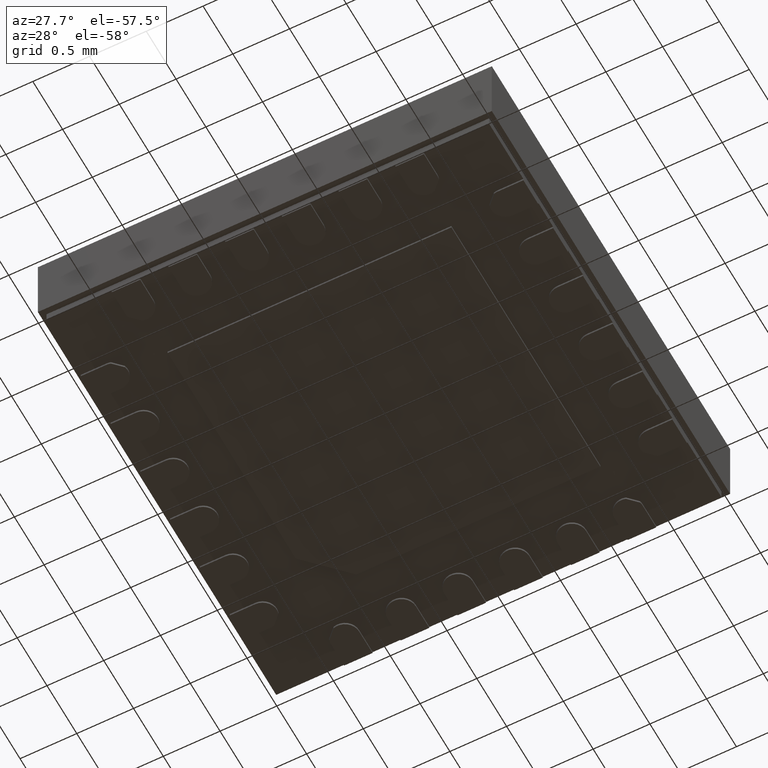
[diagram: clean part render]
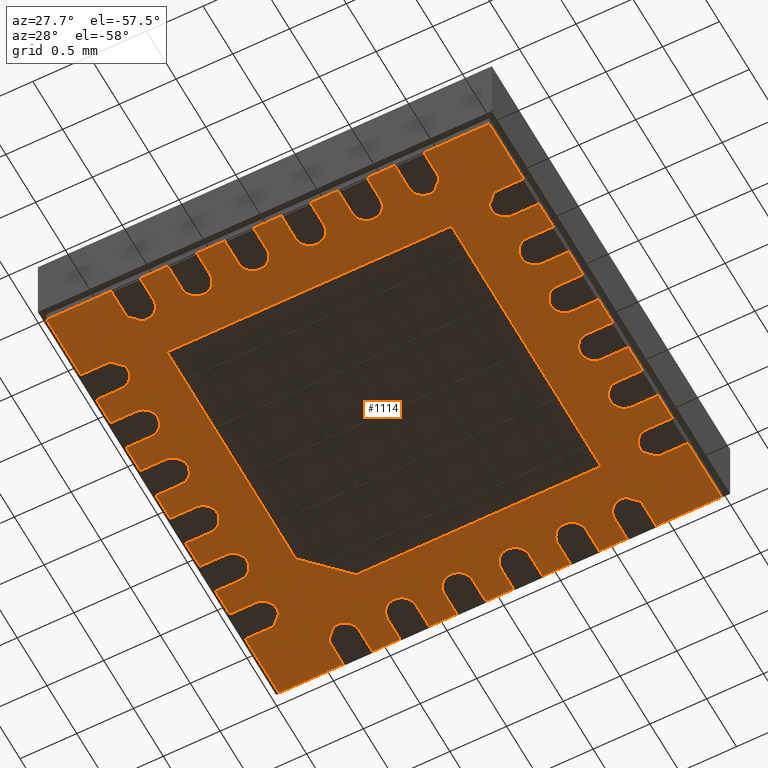
[diagram: same view with one face highlighted and labeled with its STEP entity id]
A machine part, auxiliary view. The second image highlights one B-rep face of the part: STEP entity #1114.
In plain terms, the highlighted planar face has unit normal (0, 0, 1).
Its self-contained STEP definition (entity closure, byte-faithful):
#1114=ADVANCED_FACE('',(#2281,#2282),#2283,.F.);
#2281=FACE_BOUND('',#3574,.T.);
#2282=FACE_OUTER_BOUND('',#3575,.T.);
#2283=PLANE('',#3576);
#3574=EDGE_LOOP('',(#6395,#6396,#6397,#6398,#6399));
#3575=EDGE_LOOP('',(#6400,#6401,#6402,#6403,#6404,#6405,#6406,#6407,#6408,#6409,#6410,#6411,#6412,#6413,#6414,#6415,#6416,#6417,#6418,#6419,#6420,#6421,#6422,#6423,#6424,#6425,#6426,#6427,#6428,#6429,#6430,#6431,#6432,#6433,#6434,#6435,#6436,#6437,#6438,#6439,#6440,#6441,#6442,#6443,#6444,#6445,#6446,#6447,#6448,#6449,#6450,#6451,#6452,#6453,#6454,#6455,#6456,#6457,#6458,#6459,#6460,#6461,#6462,#6463,#6464,#6465,#6466,#6467,#6468,#6469,#6470,#6471,#6472,#6473,#6474,#6475,#6476,#6477,#6478,#6479,#6480,#6481,#6482,#6483,#6484,#6485,#6486,#6487,#6488,#6489,#6490,#6491,#6492,#6493,#6494,#6495,#6496,#6497,#6498,#6499,#6500,#6501,#6502,#6503,#6504,#6505,#6506,#6507,#6508,#6509,#6510,#6511,#6512,#6513,#6514,#6515));
#3576=AXIS2_PLACEMENT_3D('',#6516,#6517,#6518);
#6395=ORIENTED_EDGE('',*,*,#8617,.T.);
#6396=ORIENTED_EDGE('',*,*,#8618,.T.);
#6397=ORIENTED_EDGE('',*,*,#8619,.T.);
#6398=ORIENTED_EDGE('',*,*,#8620,.T.);
#6399=ORIENTED_EDGE('',*,*,#8621,.T.);
#6400=ORIENTED_EDGE('',*,*,#8299,.T.);
#6401=ORIENTED_EDGE('',*,*,#8505,.T.);
#6402=ORIENTED_EDGE('',*,*,#8622,.T.);
#6403=ORIENTED_EDGE('',*,*,#8623,.T.);
#6404=ORIENTED_EDGE('',*,*,#8269,.T.);
#6405=ORIENTED_EDGE('',*,*,#8510,.T.);
#6406=ORIENTED_EDGE('',*,*,#8624,.T.);
#6407=ORIENTED_EDGE('',*,*,#8625,.T.);
#6408=ORIENTED_EDGE('',*,*,#8274,.T.);
#6409=ORIENTED_EDGE('',*,*,#8515,.T.);
#6410=ORIENTED_EDGE('',*,*,#8626,.T.);
#6411=ORIENTED_EDGE('',*,*,#8627,.T.);
#6412=ORIENTED_EDGE('',*,*,#8628,.T.);
#6413=ORIENTED_EDGE('',*,*,#8629,.T.);
#6414=ORIENTED_EDGE('',*,*,#8279,.T.);
#6415=ORIENTED_EDGE('',*,*,#8331,.T.);
#6416=ORIENTED_EDGE('',*,*,#8535,.T.);
#6417=ORIENTED_EDGE('',*,*,#8630,.T.);
#6418=ORIENTED_EDGE('',*,*,#8631,.T.);
#6419=ORIENTED_EDGE('',*,*,#8632,.T.);
#6420=ORIENTED_EDGE('',*,*,#8633,.T.);
#6421=ORIENTED_EDGE('',*,*,#8304,.T.);
#6422=ORIENTED_EDGE('',*,*,#8540,.T.);
#6423=ORIENTED_EDGE('',*,*,#8634,.T.);
#6424=ORIENTED_EDGE('',*,*,#8635,.T.);
#6425=ORIENTED_EDGE('',*,*,#8309,.T.);
#6426=ORIENTED_EDGE('',*,*,#8545,.T.);
#6427=ORIENTED_EDGE('',*,*,#8636,.T.);
#6428=ORIENTED_EDGE('',*,*,#8637,.T.);
#6429=ORIENTED_EDGE('',*,*,#8314,.T.);
#6430=ORIENTED_EDGE('',*,*,#8550,.T.);
#6431=ORIENTED_EDGE('',*,*,#8638,.T.);
#6432=ORIENTED_EDGE('',*,*,#8639,.T.);
#6433=ORIENTED_EDGE('',*,*,#8319,.T.);
#6434=ORIENTED_EDGE('',*,*,#8555,.T.);
#6435=ORIENTED_EDGE('',*,*,#8640,.T.);
#6436=ORIENTED_EDGE('',*,*,#8641,.T.);
#6437=ORIENTED_EDGE('',*,*,#8322,.T.);
#6438=ORIENTED_EDGE('',*,*,#8560,.T.);
#6439=ORIENTED_EDGE('',*,*,#8642,.T.);
#6440=ORIENTED_EDGE('',*,*,#8643,.T.);
#6441=ORIENTED_EDGE('',*,*,#8644,.T.);
#6442=ORIENTED_EDGE('',*,*,#8645,.T.);
#6443=ORIENTED_EDGE('',*,*,#8329,.T.);
#6444=ORIENTED_EDGE('',*,*,#8365,.T.);
#6445=ORIENTED_EDGE('',*,*,#8565,.T.);
#6446=ORIENTED_EDGE('',*,*,#8646,.T.);
#6447=ORIENTED_EDGE('',*,*,#8647,.T.);
#6448=ORIENTED_EDGE('',*,*,#8648,.T.);
#6449=ORIENTED_EDGE('',*,*,#8649,.T.);
#6450=ORIENTED_EDGE('',*,*,#8338,.T.);
#6451=ORIENTED_EDGE('',*,*,#8570,.T.);
#6452=ORIENTED_EDGE('',*,*,#8650,.T.);
#6453=ORIENTED_EDGE('',*,*,#8651,.T.);
#6454=ORIENTED_EDGE('',*,*,#8343,.T.);
#6455=ORIENTED_EDGE('',*,*,#8575,.T.);
#6456=ORIENTED_EDGE('',*,*,#8652,.T.);
#6457=ORIENTED_EDGE('',*,*,#8653,.T.);
#6458=ORIENTED_EDGE('',*,*,#8348,.T.);
#6459=ORIENTED_EDGE('',*,*,#8580,.T.);
#6460=ORIENTED_EDGE('',*,*,#8654,.T.);
#6461=ORIENTED_EDGE('',*,*,#8655,.T.);
#6462=ORIENTED_EDGE('',*,*,#8353,.T.);
#6463=ORIENTED_EDGE('',*,*,#8585,.T.);
#6464=ORIENTED_EDGE('',*,*,#8656,.T.);
#6465=ORIENTED_EDGE('',*,*,#8657,.T.);
#6466=ORIENTED_EDGE('',*,*,#8358,.T.);
#6467=ORIENTED_EDGE('',*,*,#8595,.T.);
#6468=ORIENTED_EDGE('',*,*,#8658,.T.);
#6469=ORIENTED_EDGE('',*,*,#8659,.T.);
#6470=ORIENTED_EDGE('',*,*,#8660,.T.);
#6471=ORIENTED_EDGE('',*,*,#8661,.T.);
#6472=ORIENTED_EDGE('',*,*,#8360,.T.);
#6473=ORIENTED_EDGE('',*,*,#8370,.T.);
#6474=ORIENTED_EDGE('',*,*,#8590,.T.);
#6475=ORIENTED_EDGE('',*,*,#8662,.T.);
#6476=ORIENTED_EDGE('',*,*,#8663,.T.);
#6477=ORIENTED_EDGE('',*,*,#8664,.T.);
#6478=ORIENTED_EDGE('',*,*,#8665,.T.);
#6479=ORIENTED_EDGE('',*,*,#8376,.T.);
#6480=ORIENTED_EDGE('',*,*,#8666,.T.);
#6481=ORIENTED_EDGE('',*,*,#8667,.T.);
#6482=ORIENTED_EDGE('',*,*,#8668,.T.);
#6483=ORIENTED_EDGE('',*,*,#8381,.T.);
#6484=ORIENTED_EDGE('',*,*,#8615,.T.);
#6485=ORIENTED_EDGE('',*,*,#8669,.T.);
#6486=ORIENTED_EDGE('',*,*,#8670,.T.);
#6487=ORIENTED_EDGE('',*,*,#8386,.T.);
#6488=ORIENTED_EDGE('',*,*,#8610,.T.);
#6489=ORIENTED_EDGE('',*,*,#8671,.T.);
#6490=ORIENTED_EDGE('',*,*,#8672,.T.);
#6491=ORIENTED_EDGE('',*,*,#8391,.T.);
#6492=ORIENTED_EDGE('',*,*,#8605,.T.);
#6493=ORIENTED_EDGE('',*,*,#8673,.T.);
#6494=ORIENTED_EDGE('',*,*,#8674,.T.);
#6495=ORIENTED_EDGE('',*,*,#8396,.T.);
#6496=ORIENTED_EDGE('',*,*,#8600,.T.);
#6497=ORIENTED_EDGE('',*,*,#8675,.T.);
#6498=ORIENTED_EDGE('',*,*,#8676,.T.);
#6499=ORIENTED_EDGE('',*,*,#8677,.T.);
#6500=ORIENTED_EDGE('',*,*,#8678,.T.);
#6501=ORIENTED_EDGE('',*,*,#8495,.T.);
#6502=ORIENTED_EDGE('',*,*,#8281,.T.);
#6503=ORIENTED_EDGE('',*,*,#8530,.T.);
#6504=ORIENTED_EDGE('',*,*,#8679,.T.);
#6505=ORIENTED_EDGE('',*,*,#8680,.T.);
#6506=ORIENTED_EDGE('',*,*,#8681,.T.);
#6507=ORIENTED_EDGE('',*,*,#8682,.T.);
#6508=ORIENTED_EDGE('',*,*,#8289,.T.);
#6509=ORIENTED_EDGE('',*,*,#8525,.T.);
#6510=ORIENTED_EDGE('',*,*,#8683,.T.);
#6511=ORIENTED_EDGE('',*,*,#8684,.T.);
#6512=ORIENTED_EDGE('',*,*,#8294,.T.);
#6513=ORIENTED_EDGE('',*,*,#8520,.T.);
#6514=ORIENTED_EDGE('',*,*,#8685,.T.);
#6515=ORIENTED_EDGE('',*,*,#8686,.T.);
#6516=CARTESIAN_POINT('',(-0.0112166299113343,0.0112165452801234,0.02));
#6517=DIRECTION('',(0.0,0.0,1.0));
#6518=DIRECTION('',(1.0,0.0,0.0));
#8269=EDGE_CURVE('',#10031,#10035,#10037,.T.);
#8274=EDGE_CURVE('',#10040,#10044,#10046,.T.);
#8279=EDGE_CURVE('',#10049,#10053,#10055,.T.);
#8281=EDGE_CURVE('',#10057,#10058,#10059,.T.);
#8289=EDGE_CURVE('',#10067,#10071,#10073,.T.);
#8294=EDGE_CURVE('',#10076,#10080,#10082,.T.);
#8299=EDGE_CURVE('',#10085,#10089,#10091,.T.);
#8304=EDGE_CURVE('',#10094,#10098,#10100,.T.);
#8309=EDGE_CURVE('',#10103,#10107,#10109,.T.);
#8314=EDGE_CURVE('',#10112,#10116,#10118,.T.);
#8319=EDGE_CURVE('',#10121,#10125,#10127,.T.);
#8322=EDGE_CURVE('',#10132,#10129,#10133,.T.);
#8329=EDGE_CURVE('',#10139,#10143,#10145,.T.);
#8331=EDGE_CURVE('',#10053,#10147,#10148,.T.);
#8338=EDGE_CURVE('',#10154,#10158,#10160,.T.);
#8343=EDGE_CURVE('',#10163,#10167,#10169,.T.);
#8348=EDGE_CURVE('',#10172,#10176,#10178,.T.);
#8353=EDGE_CURVE('',#10181,#10185,#10187,.T.);
#8358=EDGE_CURVE('',#10190,#10194,#10196,.T.);
#8360=EDGE_CURVE('',#10198,#10199,#10200,.T.);
#8365=EDGE_CURVE('',#10143,#10207,#10208,.T.);
#8370=EDGE_CURVE('',#10199,#10213,#10216,.T.);
#8376=EDGE_CURVE('',#10220,#10224,#10226,.T.);
#8381=EDGE_CURVE('',#10229,#10233,#10235,.T.);
#8386=EDGE_CURVE('',#10238,#10242,#10244,.T.);
#8391=EDGE_CURVE('',#10247,#10251,#10253,.T.);
#8396=EDGE_CURVE('',#10256,#10260,#10262,.T.);
#8495=EDGE_CURVE('',#10412,#10057,#10413,.T.);
#8505=EDGE_CURVE('',#10089,#10426,#10428,.T.);
#8510=EDGE_CURVE('',#10035,#10434,#10436,.T.);
#8515=EDGE_CURVE('',#10044,#10442,#10444,.T.);
#8520=EDGE_CURVE('',#10080,#10450,#10452,.T.);
#8525=EDGE_CURVE('',#10071,#10458,#10460,.T.);
#8530=EDGE_CURVE('',#10058,#10466,#10468,.T.);
#8535=EDGE_CURVE('',#10147,#10474,#10476,.T.);
#8540=EDGE_CURVE('',#10098,#10482,#10484,.T.);
#8545=EDGE_CURVE('',#10107,#10490,#10492,.T.);
#8550=EDGE_CURVE('',#10116,#10498,#10500,.T.);
#8555=EDGE_CURVE('',#10125,#10506,#10508,.T.);
#8560=EDGE_CURVE('',#10129,#10514,#10516,.T.);
#8565=EDGE_CURVE('',#10207,#10522,#10524,.T.);
#8570=EDGE_CURVE('',#10158,#10530,#10532,.T.);
#8575=EDGE_CURVE('',#10167,#10538,#10540,.T.);
#8580=EDGE_CURVE('',#10176,#10546,#10548,.T.);
#8585=EDGE_CURVE('',#10185,#10554,#10556,.T.);
#8590=EDGE_CURVE('',#10213,#10562,#10564,.T.);
#8595=EDGE_CURVE('',#10194,#10570,#10572,.T.);
#8600=EDGE_CURVE('',#10260,#10578,#10580,.T.);
#8605=EDGE_CURVE('',#10251,#10586,#10588,.T.);
#8610=EDGE_CURVE('',#10242,#10594,#10596,.T.);
#8615=EDGE_CURVE('',#10233,#10602,#10604,.T.);
#8617=EDGE_CURVE('',#10606,#10607,#10608,.T.);
#8618=EDGE_CURVE('',#10607,#10609,#10610,.T.);
#8619=EDGE_CURVE('',#10609,#10611,#10612,.T.);
#8620=EDGE_CURVE('',#10611,#10613,#10614,.T.);
#8621=EDGE_CURVE('',#10613,#10606,#10615,.T.);
#8622=EDGE_CURVE('',#10426,#10616,#10617,.T.);
#8623=EDGE_CURVE('',#10616,#10031,#10618,.T.);
#8624=EDGE_CURVE('',#10434,#10619,#10620,.T.);
#8625=EDGE_CURVE('',#10619,#10040,#10621,.T.);
#8626=EDGE_CURVE('',#10442,#10622,#10623,.T.);
#8627=EDGE_CURVE('',#10622,#10624,#10625,.T.);
#8628=EDGE_CURVE('',#10624,#10626,#10627,.T.);
#8629=EDGE_CURVE('',#10626,#10049,#10628,.T.);
#8630=EDGE_CURVE('',#10474,#10629,#10630,.T.);
#8631=EDGE_CURVE('',#10629,#10631,#10632,.T.);
#8632=EDGE_CURVE('',#10631,#10633,#10634,.T.);
#8633=EDGE_CURVE('',#10633,#10094,#10635,.T.);
#8634=EDGE_CURVE('',#10482,#10636,#10637,.T.);
#8635=EDGE_CURVE('',#10636,#10103,#10638,.T.);
#8636=EDGE_CURVE('',#10490,#10639,#10640,.T.);
#8637=EDGE_CURVE('',#10639,#10112,#10641,.T.);
#8638=EDGE_CURVE('',#10498,#10642,#10643,.T.);
#8639=EDGE_CURVE('',#10642,#10121,#10644,.T.);
#8640=EDGE_CURVE('',#10506,#10645,#10646,.T.);
#8641=EDGE_CURVE('',#10645,#10132,#10647,.T.);
#8642=EDGE_CURVE('',#10514,#10648,#10649,.T.);
#8643=EDGE_CURVE('',#10648,#10650,#10651,.T.);
#8644=EDGE_CURVE('',#10650,#10652,#10653,.T.);
#8645=EDGE_CURVE('',#10652,#10139,#10654,.T.);
#8646=EDGE_CURVE('',#10522,#10655,#10656,.T.);
#8647=EDGE_CURVE('',#10655,#10657,#10658,.T.);
#8648=EDGE_CURVE('',#10657,#10659,#10660,.T.);
#8649=EDGE_CURVE('',#10659,#10154,#10661,.T.);
#8650=EDGE_CURVE('',#10530,#10662,#10663,.T.);
#8651=EDGE_CURVE('',#10662,#10163,#10664,.T.);
#8652=EDGE_CURVE('',#10538,#10665,#10666,.T.);
#8653=EDGE_CURVE('',#10665,#10172,#10667,.T.);
#8654=EDGE_CURVE('',#10546,#10668,#10669,.T.);
#8655=EDGE_CURVE('',#10668,#10181,#10670,.T.);
#8656=EDGE_CURVE('',#10554,#10671,#10672,.T.);
#8657=EDGE_CURVE('',#10671,#10190,#10673,.T.);
#8658=EDGE_CURVE('',#10570,#10674,#10675,.T.);
#8659=EDGE_CURVE('',#10674,#10676,#10677,.T.);
#8660=EDGE_CURVE('',#10676,#10678,#10679,.T.);
#8661=EDGE_CURVE('',#10678,#10198,#10680,.T.);
#8662=EDGE_CURVE('',#10562,#10681,#10682,.T.);
#8663=EDGE_CURVE('',#10681,#10683,#10684,.T.);
#8664=EDGE_CURVE('',#10683,#10685,#10686,.T.);
#8665=EDGE_CURVE('',#10685,#10220,#10687,.T.);
#8666=EDGE_CURVE('',#10224,#10688,#10689,.T.);
#8667=EDGE_CURVE('',#10688,#10690,#10691,.T.);
#8668=EDGE_CURVE('',#10690,#10229,#10692,.T.);
#8669=EDGE_CURVE('',#10602,#10693,#10694,.T.);
#8670=EDGE_CURVE('',#10693,#10238,#10695,.T.);
#8671=EDGE_CURVE('',#10594,#10696,#10697,.T.);
#8672=EDGE_CURVE('',#10696,#10247,#10698,.T.);
#8673=EDGE_CURVE('',#10586,#10699,#10700,.T.);
#8674=EDGE_CURVE('',#10699,#10256,#10701,.T.);
#8675=EDGE_CURVE('',#10578,#10702,#10703,.T.);
#8676=EDGE_CURVE('',#10702,#10704,#10705,.T.);
#8677=EDGE_CURVE('',#10704,#10706,#10707,.T.);
#8678=EDGE_CURVE('',#10706,#10412,#10708,.T.);
#8679=EDGE_CURVE('',#10466,#10709,#10710,.T.);
#8680=EDGE_CURVE('',#10709,#10711,#10712,.T.);
#8681=EDGE_CURVE('',#10711,#10713,#10714,.T.);
#8682=EDGE_CURVE('',#10713,#10067,#10715,.T.);
#8683=EDGE_CURVE('',#10458,#10716,#10717,.T.);
#8684=EDGE_CURVE('',#10716,#10076,#10718,.T.);
#8685=EDGE_CURVE('',#10450,#10719,#10720,.T.);
#8686=EDGE_CURVE('',#10719,#10085,#10721,.T.);
#10031=VERTEX_POINT('',#12569);
#10035=VERTEX_POINT('',#12575);
#10037=LINE('',#12578,#12579);
#10040=VERTEX_POINT('',#12582);
#10044=VERTEX_POINT('',#12588);
#10046=LINE('',#12591,#12592);
#10049=VERTEX_POINT('',#12595);
#10053=VERTEX_POINT('',#12601);
#10055=LINE('',#12604,#12605);
#10057=VERTEX_POINT('',#12607);
#10058=VERTEX_POINT('',#12608);
#10059=LINE('',#12609,#12610);
#10067=VERTEX_POINT('',#12621);
#10071=VERTEX_POINT('',#12627);
#10073=LINE('',#12630,#12631);
#10076=VERTEX_POINT('',#12634);
#10080=VERTEX_POINT('',#12640);
#10082=LINE('',#12643,#12644);
#10085=VERTEX_POINT('',#12647);
#10089=VERTEX_POINT('',#12653);
#10091=LINE('',#12656,#12657);
#10094=VERTEX_POINT('',#12660);
#10098=VERTEX_POINT('',#12666);
#10100=LINE('',#12669,#12670);
#10103=VERTEX_POINT('',#12673);
#10107=VERTEX_POINT('',#12679);
#10109=LINE('',#12682,#12683);
#10112=VERTEX_POINT('',#12686);
#10116=VERTEX_POINT('',#12692);
#10118=LINE('',#12695,#12696);
#10121=VERTEX_POINT('',#12699);
#10125=VERTEX_POINT('',#12705);
#10127=LINE('',#12708,#12709);
#10129=VERTEX_POINT('',#12711);
#10132=VERTEX_POINT('',#12715);
#10133=LINE('',#12716,#12717);
#10139=VERTEX_POINT('',#12725);
#10143=VERTEX_POINT('',#12731);
#10145=LINE('',#12734,#12735);
#10147=VERTEX_POINT('',#12737);
#10148=LINE('',#12738,#12739);
#10154=VERTEX_POINT('',#12747);
#10158=VERTEX_POINT('',#12753);
#10160=LINE('',#12756,#12757);
#10163=VERTEX_POINT('',#12760);
#10167=VERTEX_POINT('',#12766);
#10169=LINE('',#12769,#12770);
#10172=VERTEX_POINT('',#12773);
#10176=VERTEX_POINT('',#12779);
#10178=LINE('',#12782,#12783);
#10181=VERTEX_POINT('',#12786);
#10185=VERTEX_POINT('',#12792);
#10187=LINE('',#12795,#12796);
#10190=VERTEX_POINT('',#12799);
#10194=VERTEX_POINT('',#12805);
#10196=LINE('',#12808,#12809);
#10198=VERTEX_POINT('',#12811);
#10199=VERTEX_POINT('',#12812);
#10200=LINE('',#12813,#12814);
#10207=VERTEX_POINT('',#12824);
#10208=LINE('',#12825,#12826);
#10213=VERTEX_POINT('',#12833);
#10216=LINE('',#12837,#12838);
#10220=VERTEX_POINT('',#12843);
#10224=VERTEX_POINT('',#12849);
#10226=LINE('',#12852,#12853);
#10229=VERTEX_POINT('',#12856);
#10233=VERTEX_POINT('',#12862);
#10235=LINE('',#12865,#12866);
#10238=VERTEX_POINT('',#12869);
#10242=VERTEX_POINT('',#12875);
#10244=LINE('',#12878,#12879);
#10247=VERTEX_POINT('',#12882);
#10251=VERTEX_POINT('',#12888);
#10253=LINE('',#12891,#12892);
#10256=VERTEX_POINT('',#12895);
#10260=VERTEX_POINT('',#12901);
#10262=LINE('',#12904,#12905);
#10412=VERTEX_POINT('',#13129);
#10413=LINE('',#13130,#13131);
#10426=VERTEX_POINT('',#13150);
#10428=LINE('',#13153,#13154);
#10434=VERTEX_POINT('',#13162);
#10436=LINE('',#13165,#13166);
#10442=VERTEX_POINT('',#13174);
#10444=LINE('',#13177,#13178);
#10450=VERTEX_POINT('',#13186);
#10452=LINE('',#13189,#13190);
#10458=VERTEX_POINT('',#13198);
#10460=LINE('',#13201,#13202);
#10466=VERTEX_POINT('',#13210);
#10468=LINE('',#13213,#13214);
#10474=VERTEX_POINT('',#13222);
#10476=LINE('',#13225,#13226);
#10482=VERTEX_POINT('',#13234);
#10484=LINE('',#13237,#13238);
#10490=VERTEX_POINT('',#13246);
#10492=LINE('',#13249,#13250);
#10498=VERTEX_POINT('',#13258);
#10500=LINE('',#13261,#13262);
#10506=VERTEX_POINT('',#13270);
#10508=LINE('',#13273,#13274);
#10514=VERTEX_POINT('',#13282);
#10516=LINE('',#13285,#13286);
#10522=VERTEX_POINT('',#13294);
#10524=LINE('',#13297,#13298);
#10530=VERTEX_POINT('',#13306);
#10532=LINE('',#13309,#13310);
#10538=VERTEX_POINT('',#13318);
#10540=LINE('',#13321,#13322);
#10546=VERTEX_POINT('',#13330);
#10548=LINE('',#13333,#13334);
#10554=VERTEX_POINT('',#13342);
#10556=LINE('',#13345,#13346);
#10562=VERTEX_POINT('',#13354);
#10564=LINE('',#13357,#13358);
#10570=VERTEX_POINT('',#13366);
#10572=LINE('',#13369,#13370);
#10578=VERTEX_POINT('',#13378);
#10580=LINE('',#13381,#13382);
#10586=VERTEX_POINT('',#13390);
#10588=LINE('',#13393,#13394);
#10594=VERTEX_POINT('',#13402);
#10596=LINE('',#13405,#13406);
#10602=VERTEX_POINT('',#13414);
#10604=LINE('',#13417,#13418);
#10606=VERTEX_POINT('',#13420);
#10607=VERTEX_POINT('',#13421);
#10608=LINE('',#13422,#13423);
#10609=VERTEX_POINT('',#13424);
#10610=LINE('',#13425,#13426);
#10611=VERTEX_POINT('',#13427);
#10612=LINE('',#13428,#13429);
#10613=VERTEX_POINT('',#13430);
#10614=LINE('',#13431,#13432);
#10615=LINE('',#13433,#13434);
#10616=VERTEX_POINT('',#13435);
#10617=CIRCLE('',#13436,0.125);
#10618=LINE('',#13437,#13438);
#10619=VERTEX_POINT('',#13439);
#10620=CIRCLE('',#13440,0.125);
#10621=LINE('',#13441,#13442);
#10622=VERTEX_POINT('',#13443);
#10623=CIRCLE('',#13444,0.125);
#10624=VERTEX_POINT('',#13445);
#10625=LINE('',#13446,#13447);
#10626=VERTEX_POINT('',#13448);
#10627=CIRCLE('',#13449,0.124999999999999);
#10628=LINE('',#13450,#13451);
#10629=VERTEX_POINT('',#13452);
#10630=CIRCLE('',#13453,0.12499999999998);
#10631=VERTEX_POINT('',#13454);
#10632=LINE('',#13455,#13456);
#10633=VERTEX_POINT('',#13457);
#10634=CIRCLE('',#13458,0.125000000000004);
#10635=LINE('',#13459,#13460);
#10636=VERTEX_POINT('',#13461);
#10637=CIRCLE('',#13462,0.125);
#10638=LINE('',#13463,#13464);
#10639=VERTEX_POINT('',#13465);
#10640=CIRCLE('',#13466,0.125);
#10641=LINE('',#13467,#13468);
#10642=VERTEX_POINT('',#13469);
#10643=CIRCLE('',#13470,0.125);
#10644=LINE('',#13471,#13472);
#10645=VERTEX_POINT('',#13473);
#10646=CIRCLE('',#13474,0.125);
#10647=LINE('',#13475,#13476);
#10648=VERTEX_POINT('',#13477);
#10649=CIRCLE('',#13478,0.125);
#10650=VERTEX_POINT('',#13479);
#10651=LINE('',#13480,#13481);
#10652=VERTEX_POINT('',#13482);
#10653=CIRCLE('',#13483,0.125000000000008);
#10654=LINE('',#13484,#13485);
#10655=VERTEX_POINT('',#13486);
#10656=CIRCLE('',#13487,0.12500000000001);
#10657=VERTEX_POINT('',#13488);
#10658=LINE('',#13489,#13490);
#10659=VERTEX_POINT('',#13491);
#10660=CIRCLE('',#13492,0.125000000000005);
#10661=LINE('',#13493,#13494);
#10662=VERTEX_POINT('',#13495);
#10663=CIRCLE('',#13496,0.125);
#10664=LINE('',#13497,#13498);
#10665=VERTEX_POINT('',#13499);
#10666=CIRCLE('',#13500,0.125);
#10667=LINE('',#13501,#13502);
#10668=VERTEX_POINT('',#13503);
#10669=CIRCLE('',#13504,0.125);
#10670=LINE('',#13505,#13506);
#10671=VERTEX_POINT('',#13507);
#10672=CIRCLE('',#13508,0.125);
#10673=LINE('',#13509,#13510);
#10674=VERTEX_POINT('',#13511);
#10675=CIRCLE('',#13512,0.125);
#10676=VERTEX_POINT('',#13513);
#10677=LINE('',#13514,#13515);
#10678=VERTEX_POINT('',#13516);
#10679=CIRCLE('',#13517,0.125000000000013);
#10680=LINE('',#13518,#13519);
#10681=VERTEX_POINT('',#13520);
#10682=CIRCLE('',#13521,0.125000000000002);
#10683=VERTEX_POINT('',#13522);
#10684=LINE('',#13523,#13524);
#10685=VERTEX_POINT('',#13525);
#10686=CIRCLE('',#13526,0.124999999999998);
#10687=LINE('',#13527,#13528);
#10688=VERTEX_POINT('',#13529);
#10689=LINE('',#13530,#13531);
#10690=VERTEX_POINT('',#13532);
#10691=CIRCLE('',#13533,0.125);
#10692=LINE('',#13534,#13535);
#10693=VERTEX_POINT('',#13536);
#10694=CIRCLE('',#13537,0.125);
#10695=LINE('',#13538,#13539);
#10696=VERTEX_POINT('',#13540);
#10697=CIRCLE('',#13541,0.125);
#10698=LINE('',#13542,#13543);
#10699=VERTEX_POINT('',#13544);
#10700=CIRCLE('',#13545,0.125);
#10701=LINE('',#13546,#13547);
#10702=VERTEX_POINT('',#13548);
#10703=CIRCLE('',#13549,0.125);
#10704=VERTEX_POINT('',#13550);
#10705=LINE('',#13551,#13552);
#10706=VERTEX_POINT('',#13553);
#10707=CIRCLE('',#13554,0.124999999999995);
#10708=LINE('',#13555,#13556);
#10709=VERTEX_POINT('',#13557);
#10710=CIRCLE('',#13558,0.124999999999995);
#10711=VERTEX_POINT('',#13559);
#10712=LINE('',#13560,#13561);
#10713=VERTEX_POINT('',#13562);
#10714=CIRCLE('',#13563,0.125000000000011);
#10715=LINE('',#13564,#13565);
#10716=VERTEX_POINT('',#13566);
#10717=CIRCLE('',#13567,0.125);
#10718=LINE('',#13568,#13569);
#10719=VERTEX_POINT('',#13570);
#10720=CIRCLE('',#13571,0.125);
#10721=LINE('',#13572,#13573);
#12569=CARTESIAN_POINT('',(-0.386216629909743,-1.93878345471987,0.02));
#12575=CARTESIAN_POINT('',(-0.636216629909743,-1.93878345471987,0.02));
#12578=CARTESIAN_POINT('',(-0.0112166299113344,-1.93878345471987,0.02));
#12579=VECTOR('',#14737,1.0);
#12582=CARTESIAN_POINT('',(-0.886216629909743,-1.93878345471987,0.02));
#12588=CARTESIAN_POINT('',(-1.13621662990974,-1.93878345471987,0.02));
#12591=CARTESIAN_POINT('',(-0.0112166299113344,-1.93878345471987,0.02));
#12592=VECTOR('',#14741,1.0);
#12595=CARTESIAN_POINT('',(-1.38621662990974,-1.93878345471987,0.02));
#12601=CARTESIAN_POINT('',(-1.96121662991138,-1.93878345471987,0.02));
#12604=CARTESIAN_POINT('',(-0.0112166299113344,-1.93878345471987,0.02));
#12605=VECTOR('',#14745,1.0);
#12607=CARTESIAN_POINT('',(1.93878337008871,-1.93878345471987,0.02));
#12608=CARTESIAN_POINT('',(1.36378337009026,-1.93878345471987,0.02));
#12609=CARTESIAN_POINT('',(-0.0112166299113344,-1.93878345471987,0.02));
#12610=VECTOR('',#14746,1.0);
#12621=CARTESIAN_POINT('',(1.11378337009026,-1.93878345471987,0.02));
#12627=CARTESIAN_POINT('',(0.863783370090258,-1.93878345471987,0.02));
#12630=CARTESIAN_POINT('',(-0.0112166299113344,-1.93878345471987,0.02));
#12631=VECTOR('',#14753,1.0);
#12634=CARTESIAN_POINT('',(0.613783370090257,-1.93878345471987,0.02));
#12640=CARTESIAN_POINT('',(0.363783370090257,-1.93878345471987,0.02));
#12643=CARTESIAN_POINT('',(-0.0112166299113344,-1.93878345471987,0.02));
#12644=VECTOR('',#14757,1.0);
#12647=CARTESIAN_POINT('',(0.113783370090257,-1.93878345471987,0.02));
#12653=CARTESIAN_POINT('',(-0.136216629909743,-1.93878345471987,0.02));
#12656=CARTESIAN_POINT('',(-0.0112166299113344,-1.93878345471987,0.02));
#12657=VECTOR('',#14761,1.0);
#12660=CARTESIAN_POINT('',(-1.96121662991138,-1.11378345472141,0.02));
#12666=CARTESIAN_POINT('',(-1.96121662991138,-0.863783454721468,0.02));
#12669=CARTESIAN_POINT('',(-1.96121662991138,0.011216545280109,0.02));
#12670=VECTOR('',#14765,1.0);
#12673=CARTESIAN_POINT('',(-1.96121662991138,-0.613783454721412,0.02));
#12679=CARTESIAN_POINT('',(-1.96121662991138,-0.363783454721468,0.02));
#12682=CARTESIAN_POINT('',(-1.96121662991138,0.011216545280109,0.02));
#12683=VECTOR('',#14769,1.0);
#12686=CARTESIAN_POINT('',(-1.96121662991138,-0.113783454721412,0.02));
#12692=CARTESIAN_POINT('',(-1.96121662991138,0.136216545278532,0.02));
#12695=CARTESIAN_POINT('',(-1.96121662991138,0.011216545280109,0.02));
#12696=VECTOR('',#14773,1.0);
#12699=CARTESIAN_POINT('',(-1.96121662991138,0.386216545278588,0.02));
#12705=CARTESIAN_POINT('',(-1.96121662991138,0.636216545278532,0.02));
#12708=CARTESIAN_POINT('',(-1.96121662991138,0.011216545280109,0.02));
#12709=VECTOR('',#14777,1.0);
#12711=CARTESIAN_POINT('',(-1.96121662991138,1.13621654527853,0.02));
#12715=CARTESIAN_POINT('',(-1.96121662991138,0.886216545278588,0.02));
#12716=CARTESIAN_POINT('',(-1.96121662991138,0.011216545280109,0.02));
#12717=VECTOR('',#14779,1.0);
#12725=CARTESIAN_POINT('',(-1.96121662991138,1.38621654527859,0.02));
#12731=CARTESIAN_POINT('',(-1.96121662991138,1.96121654528005,0.02));
#12734=CARTESIAN_POINT('',(-1.96121662991138,0.011216545280109,0.02));
#12735=VECTOR('',#14785,1.0);
#12737=CARTESIAN_POINT('',(-1.96121662991138,-1.36378345472147,0.02));
#12738=CARTESIAN_POINT('',(-1.96121662991138,0.011216545280109,0.02));
#12739=VECTOR('',#14786,1.0);
#12747=CARTESIAN_POINT('',(-1.13621662991293,1.96121654528005,0.02));
#12753=CARTESIAN_POINT('',(-0.886216629912926,1.96121654528005,0.02));
#12756=CARTESIAN_POINT('',(-0.0112166299113343,1.96121654528005,0.02));
#12757=VECTOR('',#14792,1.0);
#12760=CARTESIAN_POINT('',(-0.636216629912926,1.96121654528005,0.02));
#12766=CARTESIAN_POINT('',(-0.386216629912926,1.96121654528005,0.02));
#12769=CARTESIAN_POINT('',(-0.0112166299113343,1.96121654528005,0.02));
#12770=VECTOR('',#14796,1.0);
#12773=CARTESIAN_POINT('',(-0.136216629912926,1.96121654528005,0.02));
#12779=CARTESIAN_POINT('',(0.113783370087074,1.96121654528005,0.02));
#12782=CARTESIAN_POINT('',(-0.0112166299113343,1.96121654528005,0.02));
#12783=VECTOR('',#14800,1.0);
#12786=CARTESIAN_POINT('',(0.363783370087074,1.96121654528005,0.02));
#12792=CARTESIAN_POINT('',(0.613783370087074,1.96121654528005,0.02));
#12795=CARTESIAN_POINT('',(-0.0112166299113343,1.96121654528005,0.02));
#12796=VECTOR('',#14804,1.0);
#12799=CARTESIAN_POINT('',(0.863783370087074,1.96121654528005,0.02));
#12805=CARTESIAN_POINT('',(1.11378337008707,1.96121654528005,0.02));
#12808=CARTESIAN_POINT('',(-0.0112166299113343,1.96121654528005,0.02));
#12809=VECTOR('',#14808,1.0);
#12811=CARTESIAN_POINT('',(1.36378337008707,1.96121654528006,0.02));
#12812=CARTESIAN_POINT('',(1.93878337008871,1.96121654528005,0.02));
#12813=CARTESIAN_POINT('',(-0.0112166299113343,1.96121654528005,0.02));
#12814=VECTOR('',#14809,1.0);
#12824=CARTESIAN_POINT('',(-1.38621662991293,1.96121654528005,0.02));
#12825=CARTESIAN_POINT('',(-0.0112166299113343,1.96121654528005,0.02));
#12826=VECTOR('',#14813,1.0);
#12833=CARTESIAN_POINT('',(1.93878337008871,1.38621654528183,0.02));
#12837=CARTESIAN_POINT('',(1.93878337008871,0.0112165452801092,0.02));
#12838=VECTOR('',#14817,1.0);
#12843=CARTESIAN_POINT('',(1.93878337008871,1.13621654528177,0.02));
#12849=CARTESIAN_POINT('',(1.93878337008871,0.886216545281828,0.02));
#12852=CARTESIAN_POINT('',(1.93878337008871,0.0112165452801092,0.02));
#12853=VECTOR('',#14822,1.0);
#12856=CARTESIAN_POINT('',(1.93878337008871,0.636216545281772,0.02));
#12862=CARTESIAN_POINT('',(1.93878337008871,0.386216545281828,0.02));
#12865=CARTESIAN_POINT('',(1.93878337008871,0.0112165452801092,0.02));
#12866=VECTOR('',#14826,1.0);
#12869=CARTESIAN_POINT('',(1.93878337008871,0.136216545281772,0.02));
#12875=CARTESIAN_POINT('',(1.93878337008871,-0.113783454718172,0.02));
#12878=CARTESIAN_POINT('',(1.93878337008871,0.0112165452801092,0.02));
#12879=VECTOR('',#14830,1.0);
#12882=CARTESIAN_POINT('',(1.93878337008871,-0.363783454718228,0.02));
#12888=CARTESIAN_POINT('',(1.93878337008871,-0.613783454718172,0.02));
#12891=CARTESIAN_POINT('',(1.93878337008871,0.0112165452801092,0.02));
#12892=VECTOR('',#14834,1.0);
#12895=CARTESIAN_POINT('',(1.93878337008871,-0.863783454718228,0.02));
#12901=CARTESIAN_POINT('',(1.93878337008871,-1.11378345471817,0.02));
#12904=CARTESIAN_POINT('',(1.93878337008871,0.0112165452801092,0.02));
#12905=VECTOR('',#14838,1.0);
#13129=CARTESIAN_POINT('',(1.93878337008871,-1.36378345471823,0.02));
#13130=CARTESIAN_POINT('',(1.93878337008871,0.0112165452801092,0.02));
#13131=VECTOR('',#14913,1.0);
#13150=CARTESIAN_POINT('',(-0.136216629909743,-1.71378345471814,0.02));
#13153=CARTESIAN_POINT('',(-0.136216629909743,-0.920033454719435,0.02));
#13154=VECTOR('',#14921,1.0);
#13162=CARTESIAN_POINT('',(-0.636216629909743,-1.71378345471814,0.02));
#13165=CARTESIAN_POINT('',(-0.636216629909742,-0.920033454719437,0.02));
#13166=VECTOR('',#14925,1.0);
#13174=CARTESIAN_POINT('',(-1.13621662990974,-1.71378345471814,0.02));
#13177=CARTESIAN_POINT('',(-1.13621662990974,-0.920033454719438,0.02));
#13178=VECTOR('',#14929,1.0);
#13186=CARTESIAN_POINT('',(0.363783370090257,-1.71378345471814,0.02));
#13189=CARTESIAN_POINT('',(0.363783370090257,-0.920033454719433,0.02));
#13190=VECTOR('',#14933,1.0);
#13198=CARTESIAN_POINT('',(0.863783370090257,-1.71378345471814,0.02));
#13201=CARTESIAN_POINT('',(0.863783370090256,-0.920033454719431,0.02));
#13202=VECTOR('',#14937,1.0);
#13210=CARTESIAN_POINT('',(1.36378337009026,-1.71378345471814,0.02));
#13213=CARTESIAN_POINT('',(1.36378337009026,-0.940033454719355,0.02));
#13214=VECTOR('',#14941,1.0);
#13222=CARTESIAN_POINT('',(-1.73621662990965,-1.36378345472147,0.02));
#13225=CARTESIAN_POINT('',(-0.962466629910837,-1.36378345472147,0.02));
#13226=VECTOR('',#14945,1.0);
#13234=CARTESIAN_POINT('',(-1.73621662990965,-0.863783454721468,0.02));
#13237=CARTESIAN_POINT('',(-0.942466629910914,-0.863783454721468,0.02));
#13238=VECTOR('',#14949,1.0);
#13246=CARTESIAN_POINT('',(-1.73621662990965,-0.363783454721468,0.02));
#13249=CARTESIAN_POINT('',(-0.942466629910914,-0.363783454721468,0.02));
#13250=VECTOR('',#14953,1.0);
#13258=CARTESIAN_POINT('',(-1.73621662990965,0.136216545278532,0.02));
#13261=CARTESIAN_POINT('',(-0.942466629910914,0.136216545278532,0.02));
#13262=VECTOR('',#14957,1.0);
#13270=CARTESIAN_POINT('',(-1.73621662990965,0.636216545278532,0.02));
#13273=CARTESIAN_POINT('',(-0.942466629910914,0.636216545278532,0.02));
#13274=VECTOR('',#14961,1.0);
#13282=CARTESIAN_POINT('',(-1.73621662990965,1.13621654527853,0.02));
#13285=CARTESIAN_POINT('',(-0.942466629910914,1.13621654527853,0.02));
#13286=VECTOR('',#14965,1.0);
#13294=CARTESIAN_POINT('',(-1.38621662991293,1.7362165452785,0.02));
#13297=CARTESIAN_POINT('',(-1.38621662991293,0.962466545279628,0.02));
#13298=VECTOR('',#14969,1.0);
#13306=CARTESIAN_POINT('',(-0.886216629912926,1.7362165452785,0.02));
#13309=CARTESIAN_POINT('',(-0.886216629912926,0.942466545279703,0.02));
#13310=VECTOR('',#14973,1.0);
#13318=CARTESIAN_POINT('',(-0.386216629912926,1.7362165452785,0.02));
#13321=CARTESIAN_POINT('',(-0.386216629912926,0.942466545279703,0.02));
#13322=VECTOR('',#14977,1.0);
#13330=CARTESIAN_POINT('',(0.113783370087074,1.7362165452785,0.02));
#13333=CARTESIAN_POINT('',(0.113783370087073,0.942466545279703,0.02));
#13334=VECTOR('',#14981,1.0);
#13342=CARTESIAN_POINT('',(0.613783370087074,1.7362165452785,0.02));
#13345=CARTESIAN_POINT('',(0.613783370087074,0.942466545279703,0.02));
#13346=VECTOR('',#14985,1.0);
#13354=CARTESIAN_POINT('',(1.71378337008698,1.38621654528183,0.02));
#13357=CARTESIAN_POINT('',(0.94003337008817,1.38621654528183,0.02));
#13358=VECTOR('',#14989,1.0);
#13366=CARTESIAN_POINT('',(1.11378337008707,1.7362165452785,0.02));
#13369=CARTESIAN_POINT('',(1.11378337008707,0.942466545279702,0.02));
#13370=VECTOR('',#14993,1.0);
#13378=CARTESIAN_POINT('',(1.71378337008698,-1.11378345471817,0.02));
#13381=CARTESIAN_POINT('',(0.920033370088244,-1.11378345471817,0.02));
#13382=VECTOR('',#14997,1.0);
#13390=CARTESIAN_POINT('',(1.71378337008698,-0.613783454718172,0.02));
#13393=CARTESIAN_POINT('',(0.920033370088245,-0.613783454718172,0.02));
#13394=VECTOR('',#15001,1.0);
#13402=CARTESIAN_POINT('',(1.71378337008698,-0.113783454718172,0.02));
#13405=CARTESIAN_POINT('',(0.920033370088245,-0.113783454718172,0.02));
#13406=VECTOR('',#15005,1.0);
#13414=CARTESIAN_POINT('',(1.71378337008698,0.386216545281828,0.02));
#13417=CARTESIAN_POINT('',(0.920033370088245,0.386216545281828,0.02));
#13418=VECTOR('',#15009,1.0);
#13420=CARTESIAN_POINT('',(1.23878337008867,-1.23878345471988,0.02));
#13421=CARTESIAN_POINT('',(1.23878337008867,1.26121654528012,0.02));
#13422=CARTESIAN_POINT('',(1.23878337008867,0.0112165452801227,0.02));
#13423=VECTOR('',#15010,1.0);
#13424=CARTESIAN_POINT('',(-0.911216629911311,1.26121654528012,0.02));
#13425=CARTESIAN_POINT('',(0.0762833700886719,1.26121654528012,0.02));
#13426=VECTOR('',#15011,1.0);
#13427=CARTESIAN_POINT('',(-1.26121662991133,0.911216545280101,0.02));
#13428=CARTESIAN_POINT('',(-1.08621662991132,1.08621654528011,0.02));
#13429=VECTOR('',#15012,1.0);
#13430=CARTESIAN_POINT('',(-1.26121662991133,-1.23878345471988,0.02));
#13431=CARTESIAN_POINT('',(-1.26121662991133,-0.0762834547198819,0.02));
#13432=VECTOR('',#15013,1.0);
#13433=CARTESIAN_POINT('',(-0.0112166299113349,-1.23878345471988,0.02));
#13434=VECTOR('',#15014,1.0);
#13435=CARTESIAN_POINT('',(-0.386216629909743,-1.71378345471814,0.02));
#13436=AXIS2_PLACEMENT_3D('',#15015,#15016,#15017);
#13437=CARTESIAN_POINT('',(-0.386216629909743,-0.920033454719436,0.02));
#13438=VECTOR('',#15018,1.0);
#13439=CARTESIAN_POINT('',(-0.886216629909743,-1.71378345471814,0.02));
#13440=AXIS2_PLACEMENT_3D('',#15019,#15020,#15021);
#13441=CARTESIAN_POINT('',(-0.886216629909742,-0.920033454719438,0.02));
#13442=VECTOR('',#15022,1.0);
#13443=CARTESIAN_POINT('',(-1.29880354726117,-1.59456842360202,0.02));
#13444=AXIS2_PLACEMENT_3D('',#15023,#15024,#15025);
#13445=CARTESIAN_POINT('',(-1.38043166102594,-1.67619653736696,0.02));
#13446=CARTESIAN_POINT('',(-0.59586760414504,-0.891632480484422,0.02));
#13447=VECTOR('',#15026,1.0);
#13448=CARTESIAN_POINT('',(-1.38621662990974,-1.71378345471814,0.02));
#13449=AXIS2_PLACEMENT_3D('',#15027,#15028,#15029);
#13450=CARTESIAN_POINT('',(-1.38621662990974,-0.871283454718989,0.02));
#13451=VECTOR('',#15030,1.0);
#13452=CARTESIAN_POINT('',(-1.69862971256229,-1.35799848583887,0.02));
#13453=AXIS2_PLACEMENT_3D('',#15031,#15032,#15033);
#13454=CARTESIAN_POINT('',(-1.61700159879228,-1.27637037206891,0.02));
#13455=CARTESIAN_POINT('',(-0.914065655677005,-0.573434428954131,0.02));
#13456=VECTOR('',#15034,1.0);
#13457=CARTESIAN_POINT('',(-1.73621662990965,-1.11378345472141,0.02));
#13458=AXIS2_PLACEMENT_3D('',#15035,#15036,#15037);
#13459=CARTESIAN_POINT('',(-0.942466629910914,-1.11378345472141,0.02));
#13460=VECTOR('',#15038,1.0);
#13461=CARTESIAN_POINT('',(-1.73621662990965,-0.613783454721412,0.02));
#13462=AXIS2_PLACEMENT_3D('',#15039,#15040,#15041);
#13463=CARTESIAN_POINT('',(-0.942466629910914,-0.613783454721412,0.02));
#13464=VECTOR('',#15042,1.0);
#13465=CARTESIAN_POINT('',(-1.73621662990965,-0.113783454721411,0.02));
#13466=AXIS2_PLACEMENT_3D('',#15043,#15044,#15045);
#13467=CARTESIAN_POINT('',(-0.942466629910914,-0.113783454721411,0.02));
#13468=VECTOR('',#15046,1.0);
#13469=CARTESIAN_POINT('',(-1.73621662990965,0.386216545278588,0.02));
#13470=AXIS2_PLACEMENT_3D('',#15047,#15048,#15049);
#13471=CARTESIAN_POINT('',(-0.942466629910914,0.386216545278588,0.02));
#13472=VECTOR('',#15050,1.0);
#13473=CARTESIAN_POINT('',(-1.73621662990965,0.886216545278588,0.02));
#13474=AXIS2_PLACEMENT_3D('',#15051,#15052,#15053);
#13475=CARTESIAN_POINT('',(-0.942466629910914,0.886216545278588,0.02));
#13476=VECTOR('',#15054,1.0);
#13477=CARTESIAN_POINT('',(-1.61700159879361,1.29880346263027,0.02));
#13478=AXIS2_PLACEMENT_3D('',#15055,#15056,#15057);
#13479=CARTESIAN_POINT('',(-1.69862971255806,1.38043157639465,0.02));
#13480=CARTESIAN_POINT('',(-0.914065655676337,0.595867519513484,0.02));
#13481=VECTOR('',#15058,1.0);
#13482=CARTESIAN_POINT('',(-1.73621662990965,1.38621654527859,0.02));
#13483=AXIS2_PLACEMENT_3D('',#15059,#15060,#15061);
#13484=CARTESIAN_POINT('',(-0.893716629910475,1.38621654527859,0.02));
#13485=VECTOR('',#15062,1.0);
#13486=CARTESIAN_POINT('',(-1.3804316610303,1.69862962793105,0.02));
#13487=AXIS2_PLACEMENT_3D('',#15063,#15064,#15065);
#13488=CARTESIAN_POINT('',(-1.29880354726029,1.6170015141611,0.02));
#13489=CARTESIAN_POINT('',(-0.595867604145084,0.914065571046385,0.02));
#13490=VECTOR('',#15066,1.0);
#13491=CARTESIAN_POINT('',(-1.13621662991293,1.7362165452785,0.02));
#13492=AXIS2_PLACEMENT_3D('',#15067,#15068,#15069);
#13493=CARTESIAN_POINT('',(-1.13621662991293,0.942466545279703,0.02));
#13494=VECTOR('',#15070,1.0);
#13495=CARTESIAN_POINT('',(-0.636216629912926,1.7362165452785,0.02));
#13496=AXIS2_PLACEMENT_3D('',#15071,#15072,#15073);
#13497=CARTESIAN_POINT('',(-0.636216629912926,0.942466545279703,0.02));
#13498=VECTOR('',#15074,1.0);
#13499=CARTESIAN_POINT('',(-0.136216629912926,1.7362165452785,0.02));
#13500=AXIS2_PLACEMENT_3D('',#15075,#15076,#15077);
#13501=CARTESIAN_POINT('',(-0.136216629912925,0.942466545279703,0.02));
#13502=VECTOR('',#15078,1.0);
#13503=CARTESIAN_POINT('',(0.363783370087074,1.7362165452785,0.02));
#13504=AXIS2_PLACEMENT_3D('',#15079,#15080,#15081);
#13505=CARTESIAN_POINT('',(0.363783370087074,0.942466545279703,0.02));
#13506=VECTOR('',#15082,1.0);
#13507=CARTESIAN_POINT('',(0.863783370087074,1.7362165452785,0.02));
#13508=AXIS2_PLACEMENT_3D('',#15083,#15084,#15085);
#13509=CARTESIAN_POINT('',(0.863783370087075,0.942466545279703,0.02));
#13510=VECTOR('',#15086,1.0);
#13511=CARTESIAN_POINT('',(1.27637028743883,1.61700151416248,0.02));
#13512=AXIS2_PLACEMENT_3D('',#15087,#15088,#15089);
#13513=CARTESIAN_POINT('',(1.35799840120317,1.69862962792699,0.02));
#13514=CARTESIAN_POINT('',(0.573434344322459,0.914065571044636,0.02));
#13515=VECTOR('',#15090,1.0);
#13516=CARTESIAN_POINT('',(1.36378337008707,1.7362165452785,0.02));
#13517=AXIS2_PLACEMENT_3D('',#15091,#15092,#15093);
#13518=CARTESIAN_POINT('',(1.36378337008707,0.893716545279292,0.02));
#13519=VECTOR('',#15094,1.0);
#13520=CARTESIAN_POINT('',(1.67619645273962,1.38043157639923,0.02));
#13521=AXIS2_PLACEMENT_3D('',#15095,#15096,#15097);
#13522=CARTESIAN_POINT('',(1.59456833896961,1.29880346262927,0.02));
#13523=CARTESIAN_POINT('',(0.89163239585431,0.595867519514462,0.02));
#13524=VECTOR('',#15098,1.0);
#13525=CARTESIAN_POINT('',(1.71378337008698,1.13621654528177,0.02));
#13526=AXIS2_PLACEMENT_3D('',#15099,#15100,#15101);
#13527=CARTESIAN_POINT('',(0.920033370088245,1.13621654528177,0.02));
#13528=VECTOR('',#15102,1.0);
#13529=CARTESIAN_POINT('',(1.71378337008698,0.886216545281828,0.02));
#13530=CARTESIAN_POINT('',(0.920033370088245,0.886216545281828,0.02));
#13531=VECTOR('',#15103,1.0);
#13532=CARTESIAN_POINT('',(1.71378337008698,0.636216545281772,0.02));
#13533=AXIS2_PLACEMENT_3D('',#15104,#15105,#15106);
#13534=CARTESIAN_POINT('',(0.920033370088245,0.636216545281772,0.02));
#13535=VECTOR('',#15107,1.0);
#13536=CARTESIAN_POINT('',(1.71378337008698,0.136216545281772,0.02));
#13537=AXIS2_PLACEMENT_3D('',#15108,#15109,#15110);
#13538=CARTESIAN_POINT('',(0.920033370088245,0.136216545281771,0.02));
#13539=VECTOR('',#15111,1.0);
#13540=CARTESIAN_POINT('',(1.71378337008698,-0.363783454718228,0.02));
#13541=AXIS2_PLACEMENT_3D('',#15112,#15113,#15114);
#13542=CARTESIAN_POINT('',(0.920033370088245,-0.363783454718229,0.02));
#13543=VECTOR('',#15115,1.0);
#13544=CARTESIAN_POINT('',(1.71378337008698,-0.863783454718228,0.02));
#13545=AXIS2_PLACEMENT_3D('',#15116,#15117,#15118);
#13546=CARTESIAN_POINT('',(0.920033370088246,-0.863783454718229,0.02));
#13547=VECTOR('',#15119,1.0);
#13548=CARTESIAN_POINT('',(1.59456833897094,-1.27637037206991,0.02));
#13549=AXIS2_PLACEMENT_3D('',#15120,#15121,#15122);
#13550=CARTESIAN_POINT('',(1.67619645273572,-1.3579984858344,0.02));
#13551=CARTESIAN_POINT('',(0.891632395852664,-0.573434428954073,0.02));
#13552=VECTOR('',#15123,1.0);
#13553=CARTESIAN_POINT('',(1.71378337008698,-1.36378345471823,0.02));
#13554=AXIS2_PLACEMENT_3D('',#15124,#15125,#15126);
#13555=CARTESIAN_POINT('',(0.871283370087802,-1.36378345471822,0.02));
#13556=VECTOR('',#15127,1.0);
#13557=CARTESIAN_POINT('',(1.35799840120763,-1.67619653737069,0.02));
#13558=AXIS2_PLACEMENT_3D('',#15128,#15129,#15130);
#13559=CARTESIAN_POINT('',(1.27637028743762,-1.59456842360074,0.02));
#13560=CARTESIAN_POINT('',(0.573434344322444,-0.891632480486053,0.02));
#13561=VECTOR('',#15131,1.0);
#13562=CARTESIAN_POINT('',(1.11378337009026,-1.71378345471814,0.02));
#13563=AXIS2_PLACEMENT_3D('',#15132,#15133,#15134);
#13564=CARTESIAN_POINT('',(1.11378337009026,-0.920033454719431,0.02));
#13565=VECTOR('',#15135,1.0);
#13566=CARTESIAN_POINT('',(0.613783370090257,-1.71378345471814,0.02));
#13567=AXIS2_PLACEMENT_3D('',#15136,#15137,#15138);
#13568=CARTESIAN_POINT('',(0.613783370090257,-0.920033454719432,0.02));
#13569=VECTOR('',#15139,1.0);
#13570=CARTESIAN_POINT('',(0.113783370090257,-1.71378345471814,0.02));
#13571=AXIS2_PLACEMENT_3D('',#15140,#15141,#15142);
#13572=CARTESIAN_POINT('',(0.113783370090257,-0.920033454719434,0.02));
#13573=VECTOR('',#15143,1.0);
#14737=DIRECTION('',(-1.0,0.0,0.0));
#14741=DIRECTION('',(-1.0,0.0,0.0));
#14745=DIRECTION('',(-1.0,0.0,0.0));
#14746=DIRECTION('',(-1.0,0.0,0.0));
#14753=DIRECTION('',(-1.0,0.0,0.0));
#14757=DIRECTION('',(-1.0,0.0,0.0));
#14761=DIRECTION('',(-1.0,0.0,0.0));
#14765=DIRECTION('',(0.0,1.0,0.0));
#14769=DIRECTION('',(0.0,1.0,0.0));
#14773=DIRECTION('',(0.0,1.0,0.0));
#14777=DIRECTION('',(0.0,1.0,0.0));
#14779=DIRECTION('',(0.0,1.0,0.0));
#14785=DIRECTION('',(0.0,1.0,0.0));
#14786=DIRECTION('',(0.0,1.0,0.0));
#14792=DIRECTION('',(1.0,0.0,-0.0));
#14796=DIRECTION('',(1.0,0.0,-0.0));
#14800=DIRECTION('',(1.0,0.0,-0.0));
#14804=DIRECTION('',(1.0,0.0,-0.0));
#14808=DIRECTION('',(1.0,0.0,-0.0));
#14809=DIRECTION('',(1.0,0.0,-0.0));
#14813=DIRECTION('',(1.0,0.0,-0.0));
#14817=DIRECTION('',(0.0,-1.0,0.0));
#14822=DIRECTION('',(0.0,-1.0,0.0));
#14826=DIRECTION('',(0.0,-1.0,0.0));
#14830=DIRECTION('',(0.0,-1.0,0.0));
#14834=DIRECTION('',(0.0,-1.0,0.0));
#14838=DIRECTION('',(0.0,-1.0,0.0));
#14913=DIRECTION('',(0.0,-1.0,0.0));
#14921=DIRECTION('',(0.0,1.0,0.0));
#14925=DIRECTION('',(8.07434926995062E-16,1.0,-0.0));
#14929=DIRECTION('',(0.0,1.0,0.0));
#14933=DIRECTION('',(0.0,1.0,0.0));
#14937=DIRECTION('',(-1.61486985399025E-15,1.0,0.0));
#14941=DIRECTION('',(0.0,1.0,0.0));
#14945=DIRECTION('',(1.0,2.2773805633105E-15,-0.0));
#14949=DIRECTION('',(1.0,0.0,-0.0));
#14953=DIRECTION('',(1.0,0.0,-0.0));
#14957=DIRECTION('',(1.0,0.0,-0.0));
#14961=DIRECTION('',(1.0,4.03717463497587E-16,-0.0));
#14965=DIRECTION('',(1.0,0.0,-0.0));
#14969=DIRECTION('',(0.0,-1.0,0.0));
#14973=DIRECTION('',(0.0,-1.0,0.0));
#14977=DIRECTION('',(0.0,-1.0,0.0));
#14981=DIRECTION('',(-8.07434926995507E-16,-1.0,0.0));
#14985=DIRECTION('',(0.0,-1.0,0.0));
#14989=DIRECTION('',(-1.0,0.0,0.0));
#14993=DIRECTION('',(-1.61486985399101E-15,-1.0,0.0));
#14997=DIRECTION('',(-1.0,1.61486985399035E-15,0.0));
#15001=DIRECTION('',(-1.0,0.0,0.0));
#15005=DIRECTION('',(-1.0,0.0,0.0));
#15009=DIRECTION('',(-1.0,0.0,0.0));
#15010=DIRECTION('',(3.5527136788005E-16,1.0,-0.0));
#15011=DIRECTION('',(-1.0,4.13106241720993E-16,0.0));
#15012=DIRECTION('',(-0.707106781186548,-0.707106781186548,0.0));
#15013=DIRECTION('',(-4.13106241720993E-16,-1.0,0.0));
#15014=DIRECTION('',(1.0,-5.32907051820075E-16,0.0));
#15015=CARTESIAN_POINT('',(-0.261216629909743,-1.71378345471814,0.02));
#15016=DIRECTION('',(0.0,0.0,1.0));
#15017=DIRECTION('',(1.0,0.0,0.0));
#15018=DIRECTION('',(0.0,-1.0,0.0));
#15019=CARTESIAN_POINT('',(-0.761216629909742,-1.71378345471814,0.02));
#15020=DIRECTION('',(0.0,0.0,1.0));
#15021=DIRECTION('',(1.0,-1.77635683940025E-15,0.0));
#15022=DIRECTION('',(-4.03717463497527E-16,-1.0,0.0));
#15023=CARTESIAN_POINT('',(-1.26121662990974,-1.71378345471814,0.02));
#15024=DIRECTION('',(0.0,0.0,1.0));
#15025=DIRECTION('',(1.0,-1.77635683940025E-15,0.0));
#15026=DIRECTION('',(-0.70710678118581,-0.707106781187285,0.0));
#15027=CARTESIAN_POINT('',(-1.26121662990974,-1.71378345471814,0.02));
#15028=DIRECTION('',(0.0,0.0,1.0));
#15029=DIRECTION('',(-0.953720248929568,0.30069533880944,0.0));
#15030=DIRECTION('',(0.0,-1.0,0.0));
#15031=CARTESIAN_POINT('',(-1.73621662990965,-1.23878345472149,0.02));
#15032=DIRECTION('',(0.0,0.0,1.0));
#15033=DIRECTION('',(-2.13162820728064E-14,-1.0,0.0));
#15034=DIRECTION('',(0.707106781186795,0.7071067811863,-0.0));
#15035=CARTESIAN_POINT('',(-1.73621662990966,-1.23878345472147,0.02));
#15036=DIRECTION('',(0.0,0.0,1.0));
#15037=DIRECTION('',(0.953720248938995,-0.30069533877954,0.0));
#15038=DIRECTION('',(-1.0,0.0,0.0));
#15039=CARTESIAN_POINT('',(-1.73621662990965,-0.738783454721468,0.02));
#15040=DIRECTION('',(0.0,0.0,1.0));
#15041=DIRECTION('',(-1.77635683940025E-15,-1.0,0.0));
#15042=DIRECTION('',(-1.0,0.0,0.0));
#15043=CARTESIAN_POINT('',(-1.73621662990965,-0.238783454721469,0.02));
#15044=DIRECTION('',(0.0,0.0,1.0));
#15045=DIRECTION('',(0.0,-1.0,0.0));
#15046=DIRECTION('',(-1.0,-8.07434926995174E-16,0.0));
#15047=CARTESIAN_POINT('',(-1.73621662990965,0.261216545278531,0.02));
#15048=DIRECTION('',(0.0,0.0,1.0));
#15049=DIRECTION('',(0.0,-1.0,0.0));
#15050=DIRECTION('',(-1.0,4.03717463497587E-16,0.0));
#15051=CARTESIAN_POINT('',(-1.73621662990965,0.761216545278531,0.02));
#15052=DIRECTION('',(0.0,0.0,1.0));
#15053=DIRECTION('',(-1.77635683940025E-15,-1.0,0.0));
#15054=DIRECTION('',(-1.0,0.0,0.0));
#15055=CARTESIAN_POINT('',(-1.73621662990965,1.26121654527853,0.02));
#15056=DIRECTION('',(0.0,0.0,1.0));
#15057=DIRECTION('',(-1.77635683940025E-15,-1.0,0.0));
#15058=DIRECTION('',(-0.707106781186796,0.707106781186299,0.0));
#15059=CARTESIAN_POINT('',(-1.73621662990965,1.26121654527858,0.02));
#15060=DIRECTION('',(0.0,-0.0,1.0));
#15061=DIRECTION('',(0.300695338812754,0.953720248928523,0.0));
#15062=DIRECTION('',(-1.0,0.0,0.0));
#15063=CARTESIAN_POINT('',(-1.26121662991292,1.7362165452785,0.02));
#15064=DIRECTION('',(0.0,0.0,1.0));
#15065=DIRECTION('',(-1.0,-1.5987211554601E-14,0.0));
#15066=DIRECTION('',(0.707106781186794,-0.707106781186301,0.0));
#15067=CARTESIAN_POINT('',(-1.26121662991293,1.7362165452785,0.02));
#15068=DIRECTION('',(0.0,0.0,1.0));
#15069=DIRECTION('',(-0.300695338778879,-0.953720248939203,0.0));
#15070=DIRECTION('',(0.0,1.0,0.0));
#15071=CARTESIAN_POINT('',(-0.761216629912926,1.7362165452785,0.02));
#15072=DIRECTION('',(0.0,0.0,1.0));
#15073=DIRECTION('',(-1.0,3.55271367880051E-15,0.0));
#15074=DIRECTION('',(0.0,1.0,0.0));
#15075=CARTESIAN_POINT('',(-0.261216629912926,1.7362165452785,0.02));
#15076=DIRECTION('',(0.0,0.0,1.0));
#15077=DIRECTION('',(-1.0,1.77635683940025E-15,0.0));
#15078=DIRECTION('',(-8.07434926995507E-16,1.0,0.0));
#15079=CARTESIAN_POINT('',(0.238783370087074,1.7362165452785,0.02));
#15080=DIRECTION('',(0.0,0.0,1.0));
#15081=DIRECTION('',(-1.0,0.0,0.0));
#15082=DIRECTION('',(0.0,1.0,0.0));
#15083=CARTESIAN_POINT('',(0.738783370087074,1.7362165452785,0.02));
#15084=DIRECTION('',(0.0,0.0,1.0));
#15085=DIRECTION('',(-1.0,3.55271367880051E-15,0.0));
#15086=DIRECTION('',(-1.61486985399101E-15,1.0,0.0));
#15087=CARTESIAN_POINT('',(1.23878337008707,1.7362165452785,0.02));
#15088=DIRECTION('',(0.0,0.0,1.0));
#15089=DIRECTION('',(-1.0,0.0,0.0));
#15090=DIRECTION('',(0.707106781185807,0.707106781187288,-0.0));
#15091=CARTESIAN_POINT('',(1.23878337008706,1.7362165452785,0.02));
#15092=DIRECTION('',(0.0,0.0,1.0));
#15093=DIRECTION('',(0.953720248928738,-0.300695338812071,0.0));
#15094=DIRECTION('',(0.0,1.0,0.0));
#15095=CARTESIAN_POINT('',(1.71378337008698,1.26121654528183,0.02));
#15096=DIRECTION('',(0.0,0.0,1.0));
#15097=DIRECTION('',(-8.88178419700109E-15,1.0,0.0));
#15098=DIRECTION('',(-0.707106781186794,-0.707106781186301,0.0));
#15099=CARTESIAN_POINT('',(1.71378337008698,1.26121654528183,0.02));
#15100=DIRECTION('',(0.0,0.0,1.0));
#15101=DIRECTION('',(-0.953720248938988,0.300695338779562,0.0));
#15102=DIRECTION('',(1.0,0.0,-0.0));
#15103=DIRECTION('',(-1.0,0.0,0.0));
#15104=CARTESIAN_POINT('',(1.71378337008698,0.761216545281829,0.02));
#15105=DIRECTION('',(0.0,-0.0,1.0));
#15106=DIRECTION('',(3.55271367880051E-15,1.0,0.0));
#15107=DIRECTION('',(1.0,0.0,-0.0));
#15108=CARTESIAN_POINT('',(1.71378337008698,0.261216545281829,0.02));
#15109=DIRECTION('',(0.0,-0.0,1.0));
#15110=DIRECTION('',(0.0,1.0,0.0));
#15111=DIRECTION('',(1.0,8.07434926995173E-16,-0.0));
#15112=CARTESIAN_POINT('',(1.71378337008698,-0.238783454718171,0.02));
#15113=DIRECTION('',(0.0,-0.0,1.0));
#15114=DIRECTION('',(0.0,1.0,0.0));
#15115=DIRECTION('',(1.0,8.07434926995173E-16,-0.0));
#15116=CARTESIAN_POINT('',(1.71378337008698,-0.738783454718172,0.02));
#15117=DIRECTION('',(0.0,0.0,1.0));
#15118=DIRECTION('',(-1.77635683940025E-15,1.0,0.0));
#15119=DIRECTION('',(1.0,1.61486985399035E-15,-0.0));
#15120=CARTESIAN_POINT('',(1.71378337008698,-1.23878345471817,0.02));
#15121=DIRECTION('',(0.0,-0.0,1.0));
#15122=DIRECTION('',(1.77635683940025E-15,1.0,0.0));
#15123=DIRECTION('',(0.707106781187779,-0.707106781185317,0.0));
#15124=CARTESIAN_POINT('',(1.71378337008698,-1.23878345471823,0.02));
#15125=DIRECTION('',(0.0,0.0,1.0));
#15126=DIRECTION('',(-0.300695338810077,-0.953720248929367,0.0));
#15127=DIRECTION('',(1.0,-5.55111512313074E-15,0.0));
#15128=CARTESIAN_POINT('',(1.23878337009026,-1.71378345471814,0.02));
#15129=DIRECTION('',(0.0,0.0,1.0));
#15130=DIRECTION('',(1.0,-7.1054273576013E-15,0.0));
#15131=DIRECTION('',(-0.707106781186794,0.707106781186301,0.0));
#15132=CARTESIAN_POINT('',(1.23878337009026,-1.71378345471815,0.02));
#15133=DIRECTION('',(0.0,-0.0,1.0));
#15134=DIRECTION('',(0.300695338778866,0.953720248939207,0.0));
#15135=DIRECTION('',(0.0,-1.0,0.0));
#15136=CARTESIAN_POINT('',(0.738783370090257,-1.71378345471814,0.02));
#15137=DIRECTION('',(0.0,-0.0,1.0));
#15138=DIRECTION('',(1.0,7.105427357601E-15,0.0));
#15139=DIRECTION('',(0.0,-1.0,0.0));
#15140=CARTESIAN_POINT('',(0.238783370090257,-1.71378345471814,0.02));
#15141=DIRECTION('',(0.0,0.0,1.0));
#15142=DIRECTION('',(1.0,0.0,0.0));
#15143=DIRECTION('',(8.07434926995097E-16,-1.0,0.0));